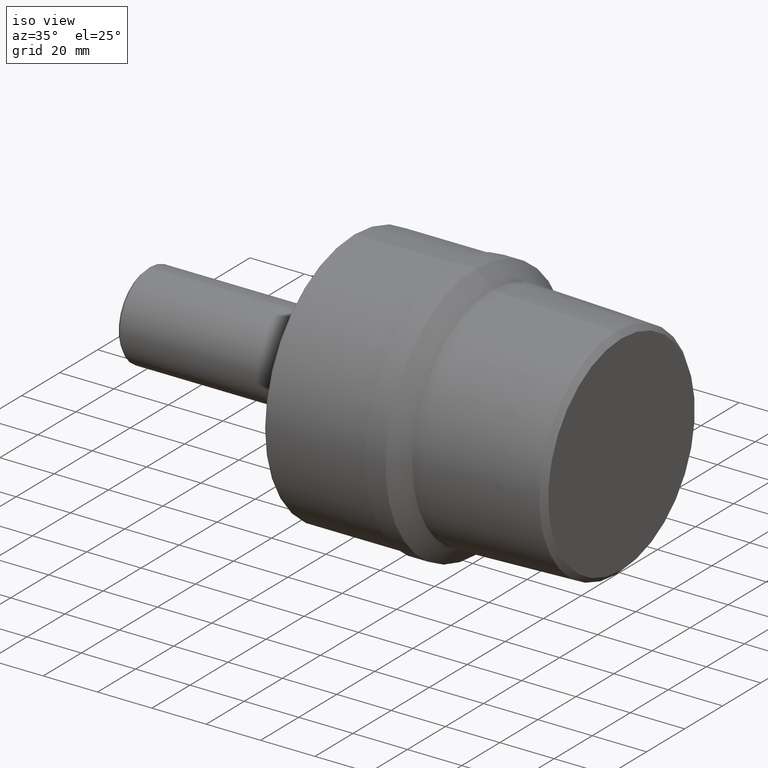
[diagram: clean part render]
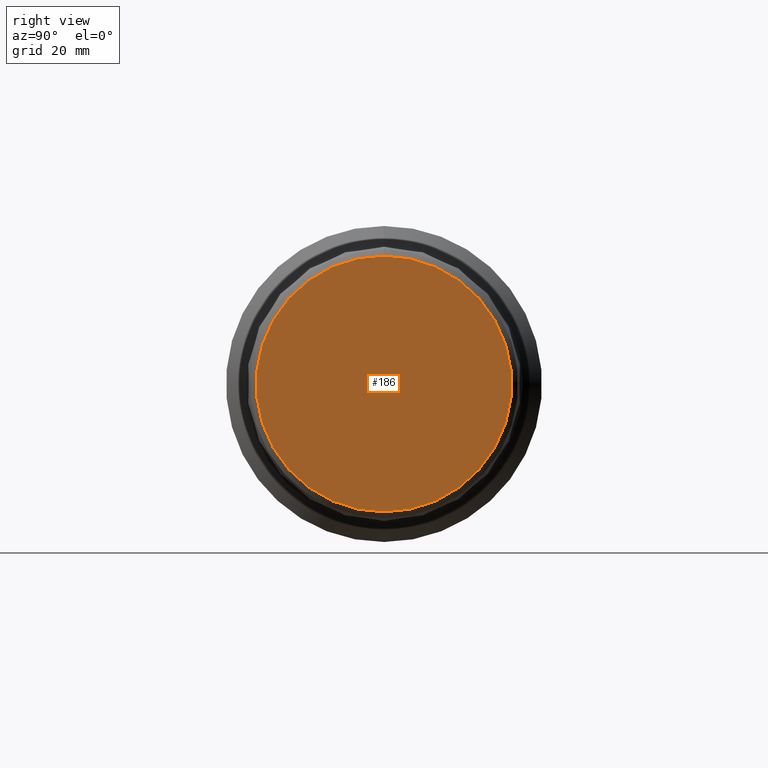
[diagram: tour spotlight — one face highlighted and labeled with its STEP entity id]
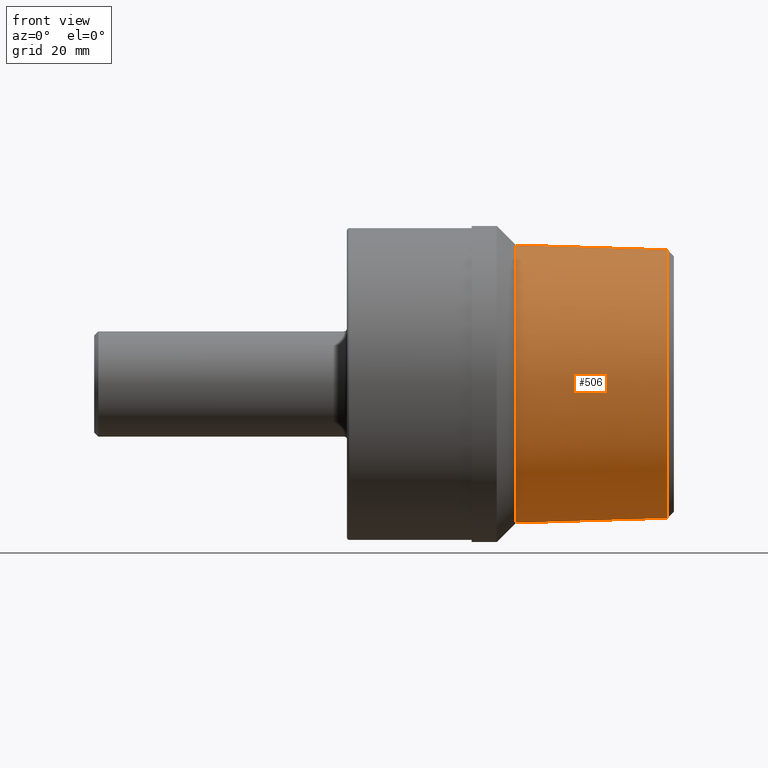
[diagram: tour spotlight — one face highlighted and labeled with its STEP entity id]
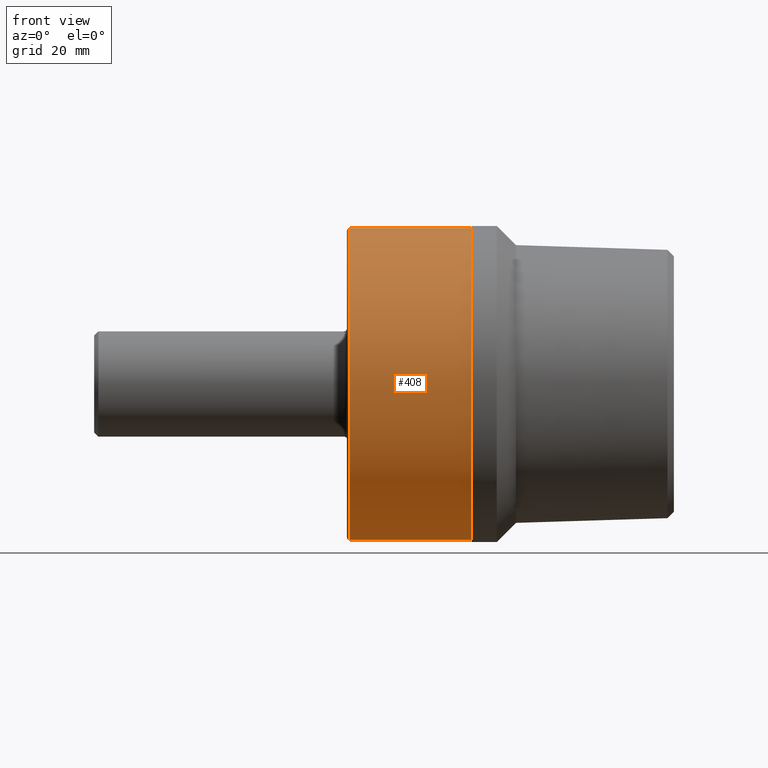
[diagram: tour spotlight — one face highlighted and labeled with its STEP entity id]
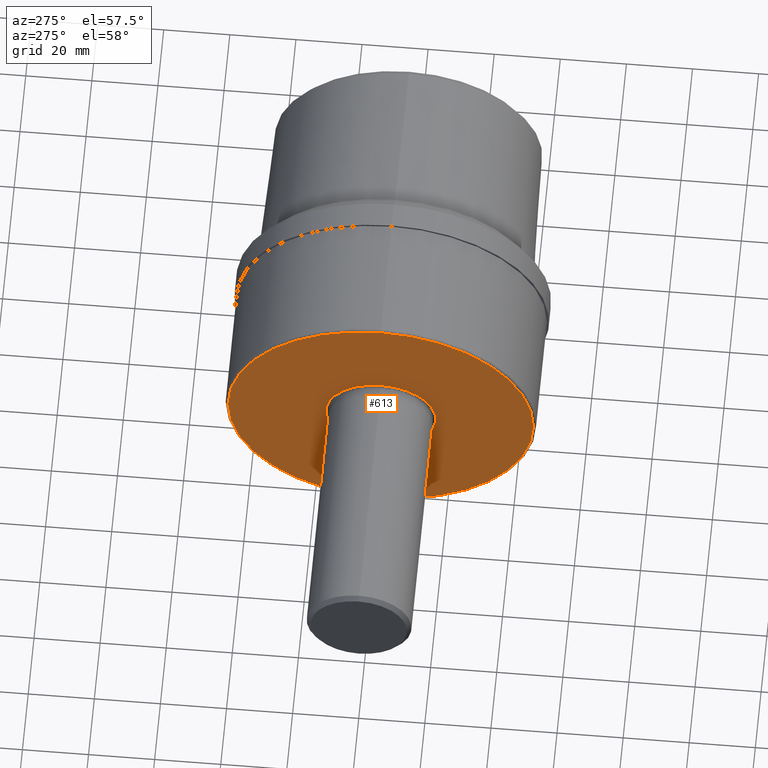
[diagram: tour spotlight — one face highlighted and labeled with its STEP entity id]
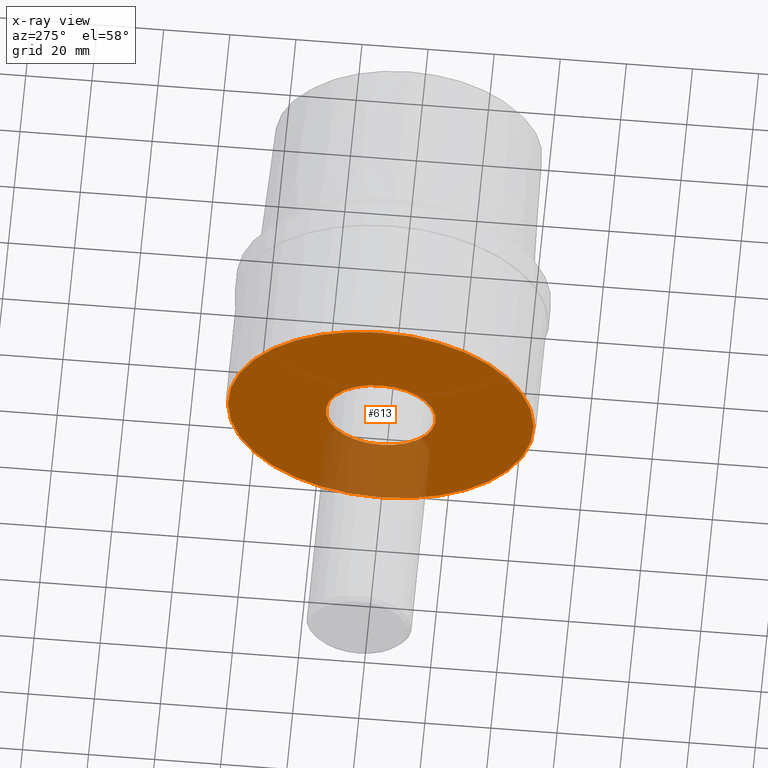
[diagram: x-ray of the same camera — body ghosted, this tour face saturated]
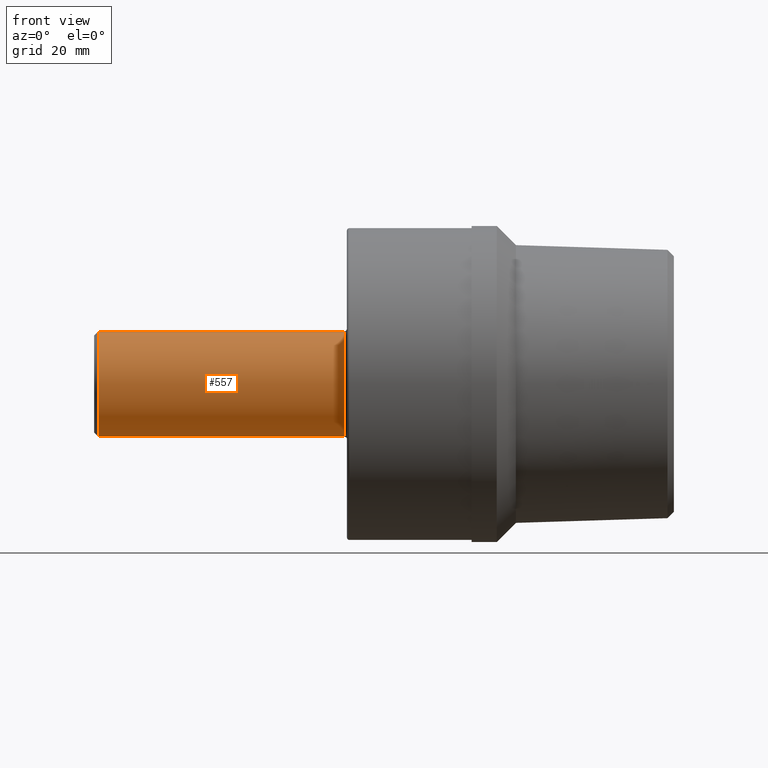
[diagram: tour spotlight — one face highlighted and labeled with its STEP entity id]
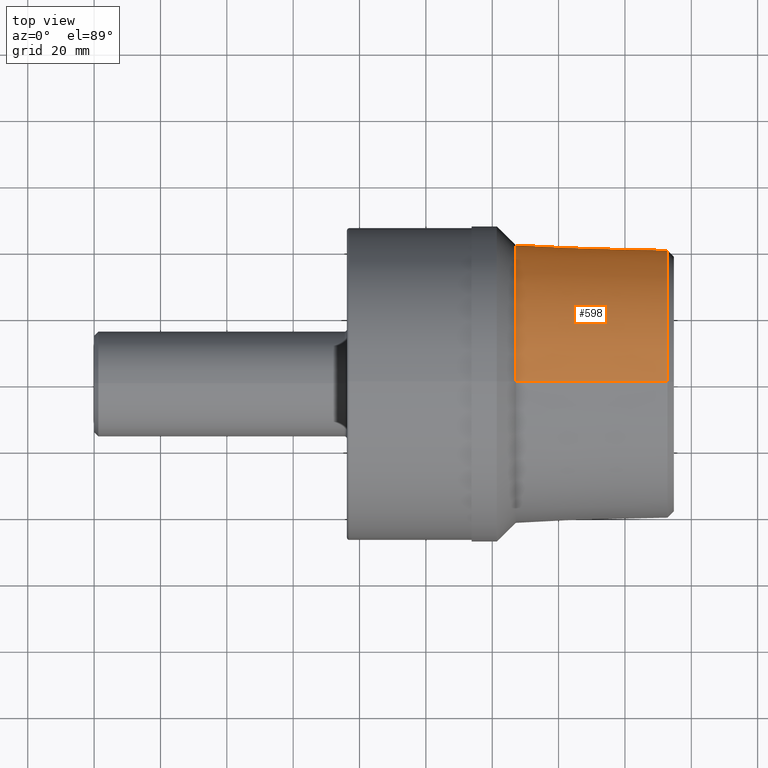
[diagram: tour spotlight — one face highlighted and labeled with its STEP entity id]
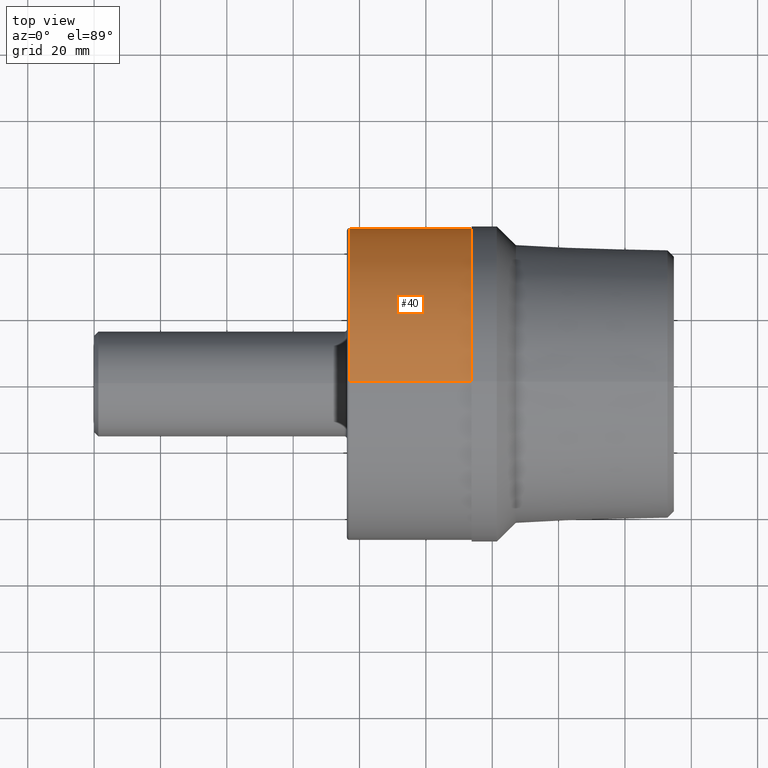
[diagram: tour spotlight — one face highlighted and labeled with its STEP entity id]
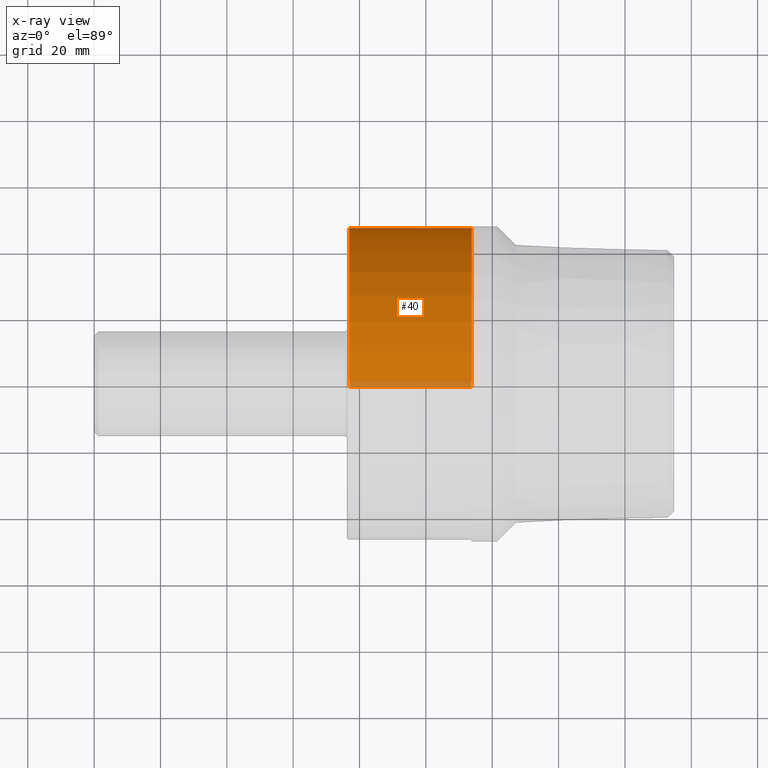
[diagram: x-ray of the same camera — body ghosted, this tour face saturated]
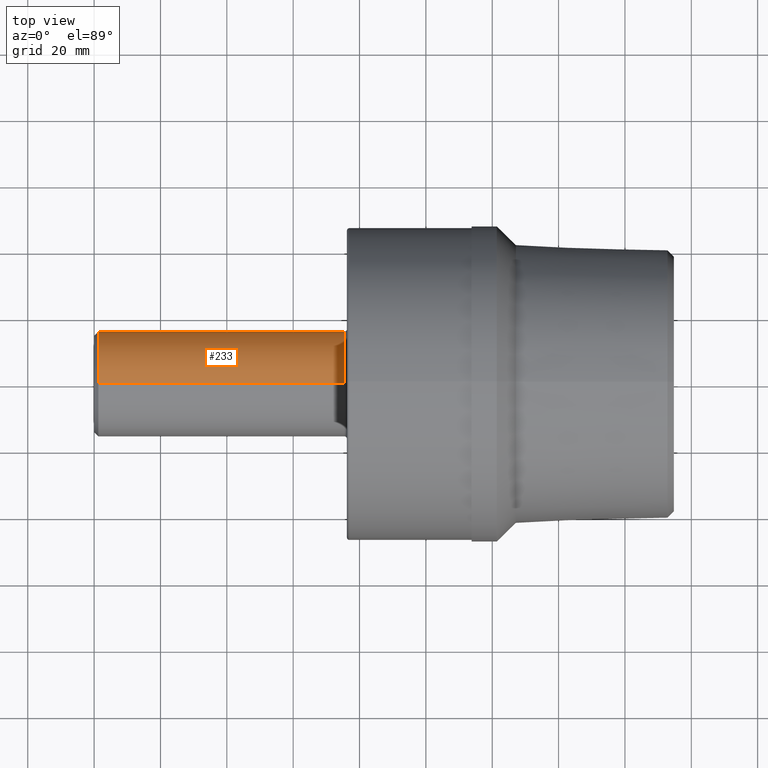
[diagram: tour spotlight — one face highlighted and labeled with its STEP entity id]
A machine part: a face-by-face anatomy tour. The part has 22 B-rep faces; the first image is the clean iso view, then the 8 largest visible faces are spotlighted one at a time (largest first), each with its STEP entity span.

Face 1 — right view, entity #186. In plain terms, the highlighted planar face has unit normal (-1, 0, -0).
Definition (entity closure, byte-faithful):
#34 = DIRECTION ( 'NONE',  ( 0.0000000000000000000, 0.0000000000000000000, 1.000000000000000000 ) ) ;
#43 = AXIS2_PLACEMENT_3D ( 'NONE', #351, #545, #221 ) ;
#46 = VERTEX_POINT ( 'NONE', #306 ) ;
#48 = AXIS2_PLACEMENT_3D ( 'NONE', #181, #261, #34 ) ;
#92 = CARTESIAN_POINT ( 'NONE',  ( 6.879999999999999893, 1.517061653312734126, 0.0000000000000000000 ) ) ;
#111 = EDGE_LOOP ( 'NONE', ( #309, #259 ) ) ;
#173 = VERTEX_POINT ( 'NONE', #295 ) ;
#175 = FACE_OUTER_BOUND ( 'NONE', #111, .T. ) ;
#176 = EDGE_CURVE ( 'NONE', #173, #46, #321, .T. ) ;
#181 = CARTESIAN_POINT ( 'NONE',  ( 6.879999999999999893, 0.0000000000000000000, 0.0000000000000000000 ) ) ;
#186 = ADVANCED_FACE ( 'NONE', ( #175 ), #446, .F. ) ;
#209 = DIRECTION ( 'NONE',  ( -0.0000000000000000000, 0.0000000000000000000, 1.000000000000000000 ) ) ;
#221 = DIRECTION ( 'NONE',  ( 0.0000000000000000000, 0.0000000000000000000, 1.000000000000000000 ) ) ;
#225 = EDGE_CURVE ( 'NONE', #46, #173, #381, .T. ) ;
#259 = ORIENTED_EDGE ( 'NONE', *, *, #225, .F. ) ;
#261 = DIRECTION ( 'NONE',  ( -1.000000000000000000, -0.0000000000000000000, -0.0000000000000000000 ) ) ;
#295 = CARTESIAN_POINT ( 'NONE',  ( 6.879999999999999893, 0.0000000000000000000, 1.517061653312734126 ) ) ;
#302 = DIRECTION ( 'NONE',  ( -1.000000000000000000, 0.0000000000000000000, -0.0000000000000000000 ) ) ;
#306 = CARTESIAN_POINT ( 'NONE',  ( 6.879999999999999893, 1.903788952806657656E-16, -1.517061653312734126 ) ) ;
#309 = ORIENTED_EDGE ( 'NONE', *, *, #176, .F. ) ;
#321 = CIRCLE ( 'NONE', #48, 1.517061653312734126 ) ;
#351 = CARTESIAN_POINT ( 'NONE',  ( 6.879999999999999893, 0.0000000000000000000, 0.0000000000000000000 ) ) ;
#381 = CIRCLE ( 'NONE', #43, 1.517061653312734126 ) ;
#446 = PLANE ( 'NONE',  #489 ) ;
#489 = AXIS2_PLACEMENT_3D ( 'NONE', #92, #302, #209 ) ;
#545 = DIRECTION ( 'NONE',  ( -1.000000000000000000, -0.0000000000000000000, -0.0000000000000000000 ) ) ;

Face 2 — front view, entity #506. In plain terms, the highlighted conical surface has half-angle 1.78 deg.
Definition (entity closure, byte-faithful):
#7 = CIRCLE ( 'NONE', #337, 1.647999999999999909 ) ;
#23 = DIRECTION ( 'NONE',  ( -1.000000000000000000, -0.0000000000000000000, -0.0000000000000000000 ) ) ;
#28 = VECTOR ( 'NONE', #516, 39.37007874015748854 ) ;
#36 = EDGE_CURVE ( 'NONE', #307, #177, #49, .T. ) ;
#49 = LINE ( 'NONE', #83, #28 ) ;
#55 = VECTOR ( 'NONE', #569, 39.37007874015748854 ) ;
#60 = AXIS2_PLACEMENT_3D ( 'NONE', #492, #114, #543 ) ;
#65 = CIRCLE ( 'NONE', #60, 1.592061653312734970 ) ;
#66 = EDGE_CURVE ( 'NONE', #177, #415, #7, .T. ) ;
#83 = CARTESIAN_POINT ( 'NONE',  ( 6.805000000000000604, 1.949713207774683978E-16, -1.592061653312734970 ) ) ;
#114 = DIRECTION ( 'NONE',  ( -1.000000000000000000, -0.0000000000000000000, -0.0000000000000000000 ) ) ;
#123 = CARTESIAN_POINT ( 'NONE',  ( 5.004999999999999893, 0.0000000000000000000, 0.0000000000000000000 ) ) ;
#149 = VERTEX_POINT ( 'NONE', #247 ) ;
#177 = VERTEX_POINT ( 'NONE', #311 ) ;
#190 = CARTESIAN_POINT ( 'NONE',  ( 6.805000000000000604, 0.0000000000000000000, 1.592061653312734970 ) ) ;
#245 = AXIS2_PLACEMENT_3D ( 'NONE', #548, #589, #338 ) ;
#247 = CARTESIAN_POINT ( 'NONE',  ( 6.805000000000000604, 0.0000000000000000000, 1.592061653312734970 ) ) ;
#280 = ORIENTED_EDGE ( 'NONE', *, *, #377, .T. ) ;
#307 = VERTEX_POINT ( 'NONE', #494 ) ;
#311 = CARTESIAN_POINT ( 'NONE',  ( 5.004999999999999893, 2.157215336698062520E-16, -1.647999999999999909 ) ) ;
#337 = AXIS2_PLACEMENT_3D ( 'NONE', #123, #23, #554 ) ;
#338 = DIRECTION ( 'NONE',  ( 0.0000000000000000000, 0.0000000000000000000, 1.000000000000000000 ) ) ;
#377 = EDGE_CURVE ( 'NONE', #307, #149, #65, .T. ) ;
#391 = CARTESIAN_POINT ( 'NONE',  ( 5.004999999999999893, 0.0000000000000000000, 1.647999999999999909 ) ) ;
#415 = VERTEX_POINT ( 'NONE', #391 ) ;
#418 = LINE ( 'NONE', #190, #55 ) ;
#420 = ORIENTED_EDGE ( 'NONE', *, *, #596, .T. ) ;
#448 = CONICAL_SURFACE ( 'NONE', #245, 1.592061653312734970, 0.03106686068549932567 ) ;
#479 = FACE_OUTER_BOUND ( 'NONE', #523, .T. ) ;
#492 = CARTESIAN_POINT ( 'NONE',  ( 6.805000000000000604, 0.0000000000000000000, 0.0000000000000000000 ) ) ;
#494 = CARTESIAN_POINT ( 'NONE',  ( 6.805000000000000604, 1.983965566384761139E-16, -1.592061653312734970 ) ) ;
#506 = ADVANCED_FACE ( 'NONE', ( #479 ), #448, .T. ) ;
#516 = DIRECTION ( 'NONE',  ( -0.9995174638954169577, 3.803981178931174618E-18, -0.03106186356408765711 ) ) ;
#523 = EDGE_LOOP ( 'NONE', ( #552, #280, #420, #592 ) ) ;
#543 = DIRECTION ( 'NONE',  ( 0.0000000000000000000, 0.0000000000000000000, 1.000000000000000000 ) ) ;
#548 = CARTESIAN_POINT ( 'NONE',  ( 6.805000000000000604, 0.0000000000000000000, 0.0000000000000000000 ) ) ;
#552 = ORIENTED_EDGE ( 'NONE', *, *, #36, .F. ) ;
#554 = DIRECTION ( 'NONE',  ( 0.0000000000000000000, 0.0000000000000000000, 1.000000000000000000 ) ) ;
#569 = DIRECTION ( 'NONE',  ( -0.9995174638954169577, 0.0000000000000000000, 0.03106186356408765711 ) ) ;
#589 = DIRECTION ( 'NONE',  ( -1.000000000000000000, -0.0000000000000000000, -0.0000000000000000000 ) ) ;
#592 = ORIENTED_EDGE ( 'NONE', *, *, #66, .F. ) ;
#596 = EDGE_CURVE ( 'NONE', #149, #415, #418, .T. ) ;

Face 3 — front view, entity #408. In plain terms, the highlighted cylindrical surface (partial cylindrical patch) has radius 46.99 mm, axis along (-1, -0, -0).
Definition (entity closure, byte-faithful):
#3 = ORIENTED_EDGE ( 'NONE', *, *, #405, .T. ) ;
#26 = CARTESIAN_POINT ( 'NONE',  ( 0.0000000000000000000, 0.0000000000000000000, 1.850000000000000311 ) ) ;
#54 = AXIS2_PLACEMENT_3D ( 'NONE', #257, #339, #291 ) ;
#116 = CIRCLE ( 'NONE', #54, 1.850000000000000311 ) ;
#117 = CARTESIAN_POINT ( 'NONE',  ( 4.479999999999999538, 0.0000000000000000000, 0.0000000000000000000 ) ) ;
#147 = VERTEX_POINT ( 'NONE', #293 ) ;
#157 = CIRCLE ( 'NONE', #358, 1.850000000000000311 ) ;
#170 = DIRECTION ( 'NONE',  ( -1.000000000000000000, -0.0000000000000000000, -0.0000000000000000000 ) ) ;
#171 = AXIS2_PLACEMENT_3D ( 'NONE', #583, #218, #551 ) ;
#194 = ORIENTED_EDGE ( 'NONE', *, *, #537, .F. ) ;
#200 = LINE ( 'NONE', #591, #541 ) ;
#211 = DIRECTION ( 'NONE',  ( 0.0000000000000000000, 0.0000000000000000000, 1.000000000000000000 ) ) ;
#215 = DIRECTION ( 'NONE',  ( -1.000000000000000000, -0.0000000000000000000, -0.0000000000000000000 ) ) ;
#218 = DIRECTION ( 'NONE',  ( -1.000000000000000000, -0.0000000000000000000, -0.0000000000000000000 ) ) ;
#226 = DIRECTION ( 'NONE',  ( -1.000000000000000000, -0.0000000000000000000, -0.0000000000000000000 ) ) ;
#237 = ORIENTED_EDGE ( 'NONE', *, *, #282, .F. ) ;
#257 = CARTESIAN_POINT ( 'NONE',  ( 3.030000000000000249, 0.0000000000000000000, 0.0000000000000000000 ) ) ;
#258 = FACE_OUTER_BOUND ( 'NONE', #582, .T. ) ;
#264 = CARTESIAN_POINT ( 'NONE',  ( 3.030000000000000249, 2.265596578422603594E-16, -1.850000000000000311 ) ) ;
#273 = CARTESIAN_POINT ( 'NONE',  ( 4.479999999999999538, 2.265596578422603594E-16, -1.850000000000000311 ) ) ;
#279 = VERTEX_POINT ( 'NONE', #608 ) ;
#282 = EDGE_CURVE ( 'NONE', #287, #527, #200, .T. ) ;
#287 = VERTEX_POINT ( 'NONE', #273 ) ;
#291 = DIRECTION ( 'NONE',  ( 0.0000000000000000000, 0.0000000000000000000, 1.000000000000000000 ) ) ;
#293 = CARTESIAN_POINT ( 'NONE',  ( 3.030000000000000249, 0.0000000000000000000, 1.850000000000000311 ) ) ;
#322 = EDGE_CURVE ( 'NONE', #279, #147, #356, .T. ) ;
#339 = DIRECTION ( 'NONE',  ( -1.000000000000000000, -0.0000000000000000000, -0.0000000000000000000 ) ) ;
#356 = LINE ( 'NONE', #26, #467 ) ;
#358 = AXIS2_PLACEMENT_3D ( 'NONE', #117, #170, #211 ) ;
#374 = CYLINDRICAL_SURFACE ( 'NONE', #171, 1.850000000000000311 ) ;
#405 = EDGE_CURVE ( 'NONE', #287, #279, #157, .T. ) ;
#408 = ADVANCED_FACE ( 'NONE', ( #258 ), #374, .T. ) ;
#419 = ORIENTED_EDGE ( 'NONE', *, *, #322, .T. ) ;
#467 = VECTOR ( 'NONE', #215, 39.37007874015748143 ) ;
#527 = VERTEX_POINT ( 'NONE', #264 ) ;
#537 = EDGE_CURVE ( 'NONE', #527, #147, #116, .T. ) ;
#541 = VECTOR ( 'NONE', #226, 39.37007874015748143 ) ;
#551 = DIRECTION ( 'NONE',  ( 0.0000000000000000000, 0.0000000000000000000, 1.000000000000000000 ) ) ;
#582 = EDGE_LOOP ( 'NONE', ( #237, #3, #419, #194 ) ) ;
#583 = CARTESIAN_POINT ( 'NONE',  ( 0.0000000000000000000, 0.0000000000000000000, 0.0000000000000000000 ) ) ;
#591 = CARTESIAN_POINT ( 'NONE',  ( 0.0000000000000000000, 2.265596578422603594E-16, -1.850000000000000311 ) ) ;
#608 = CARTESIAN_POINT ( 'NONE',  ( 4.479999999999999538, 0.0000000000000000000, 1.850000000000000311 ) ) ;

Face 4 — auxiliary view, entity #613. An x-ray twin of the same camera follows (body ghosted, this face saturated) — the face is partly hidden behind the body. In plain terms, the highlighted planar face has unit normal (1, 0, 0).
Definition (entity closure, byte-faithful):
#1 = CIRCLE ( 'NONE', #607, 1.820000000000000284 ) ;
#6 = AXIS2_PLACEMENT_3D ( 'NONE', #342, #203, #318 ) ;
#31 = CARTESIAN_POINT ( 'NONE',  ( 3.000000000000000444, 0.0000000000000000000, 1.820000000000000284 ) ) ;
#39 = VERTEX_POINT ( 'NONE', #414 ) ;
#57 = ORIENTED_EDGE ( 'NONE', *, *, #577, .T. ) ;
#72 = PLANE ( 'NONE',  #514 ) ;
#109 = EDGE_LOOP ( 'NONE', ( #184, #57 ) ) ;
#164 = FACE_OUTER_BOUND ( 'NONE', #109, .T. ) ;
#179 = CARTESIAN_POINT ( 'NONE',  ( 2.999999999999999556, 1.820000000000000284, 0.0000000000000000000 ) ) ;
#184 = ORIENTED_EDGE ( 'NONE', *, *, #447, .T. ) ;
#188 = AXIS2_PLACEMENT_3D ( 'NONE', #502, #270, #402 ) ;
#195 = VERTEX_POINT ( 'NONE', #31 ) ;
#196 = CIRCLE ( 'NONE', #347, 0.6548500000000007093 ) ;
#203 = DIRECTION ( 'NONE',  ( -1.000000000000000000, -0.0000000000000000000, -0.0000000000000000000 ) ) ;
#254 = DIRECTION ( 'NONE',  ( 1.000000000000000000, 0.0000000000000000000, 0.0000000000000000000 ) ) ;
#267 = CARTESIAN_POINT ( 'NONE',  ( 3.000000000000000444, 0.0000000000000000000, 0.0000000000000000000 ) ) ;
#270 = DIRECTION ( 'NONE',  ( -1.000000000000000000, -0.0000000000000000000, -0.0000000000000000000 ) ) ;
#274 = DIRECTION ( 'NONE',  ( 0.0000000000000000000, 0.0000000000000000000, -1.000000000000000000 ) ) ;
#318 = DIRECTION ( 'NONE',  ( 0.0000000000000000000, 0.0000000000000000000, 1.000000000000000000 ) ) ;
#325 = DIRECTION ( 'NONE',  ( 0.0000000000000000000, 0.0000000000000000000, 1.000000000000000000 ) ) ;
#333 = CIRCLE ( 'NONE', #6, 0.6548500000000007093 ) ;
#342 = CARTESIAN_POINT ( 'NONE',  ( 2.999999999999999556, 0.0000000000000000000, 0.0000000000000000000 ) ) ;
#347 = AXIS2_PLACEMENT_3D ( 'NONE', #511, #413, #532 ) ;
#386 = CARTESIAN_POINT ( 'NONE',  ( 2.999999999999999556, 0.0000000000000000000, 0.6548500000000007093 ) ) ;
#387 = FACE_BOUND ( 'NONE', #392, .T. ) ;
#392 = EDGE_LOOP ( 'NONE', ( #538, #519 ) ) ;
#393 = CARTESIAN_POINT ( 'NONE',  ( 3.000000000000000444, 2.247226876435393459E-16, -1.820000000000000284 ) ) ;
#402 = DIRECTION ( 'NONE',  ( 0.0000000000000000000, 0.0000000000000000000, 1.000000000000000000 ) ) ;
#413 = DIRECTION ( 'NONE',  ( -1.000000000000000000, -0.0000000000000000000, -0.0000000000000000000 ) ) ;
#414 = CARTESIAN_POINT ( 'NONE',  ( 2.999999999999999556, 8.019599564216449926E-17, -0.6548500000000007093 ) ) ;
#447 = EDGE_CURVE ( 'NONE', #195, #535, #1, .T. ) ;
#502 = CARTESIAN_POINT ( 'NONE',  ( 3.000000000000000444, 0.0000000000000000000, 0.0000000000000000000 ) ) ;
#511 = CARTESIAN_POINT ( 'NONE',  ( 2.999999999999999556, 0.0000000000000000000, 0.0000000000000000000 ) ) ;
#514 = AXIS2_PLACEMENT_3D ( 'NONE', #179, #254, #274 ) ;
#518 = EDGE_CURVE ( 'NONE', #571, #39, #333, .T. ) ;
#519 = ORIENTED_EDGE ( 'NONE', *, *, #593, .F. ) ;
#530 = DIRECTION ( 'NONE',  ( -1.000000000000000000, -0.0000000000000000000, -0.0000000000000000000 ) ) ;
#532 = DIRECTION ( 'NONE',  ( 0.0000000000000000000, 0.0000000000000000000, 1.000000000000000000 ) ) ;
#535 = VERTEX_POINT ( 'NONE', #393 ) ;
#538 = ORIENTED_EDGE ( 'NONE', *, *, #518, .F. ) ;
#559 = CIRCLE ( 'NONE', #188, 1.820000000000000284 ) ;
#571 = VERTEX_POINT ( 'NONE', #386 ) ;
#577 = EDGE_CURVE ( 'NONE', #535, #195, #559, .T. ) ;
#593 = EDGE_CURVE ( 'NONE', #39, #571, #196, .T. ) ;
#607 = AXIS2_PLACEMENT_3D ( 'NONE', #267, #530, #325 ) ;
#613 = ADVANCED_FACE ( 'NONE', ( #387, #164 ), #72, .F. ) ;

Face 5 — front view, entity #557. In plain terms, the highlighted cylindrical surface (partial cylindrical patch) has radius 15.8712 mm, axis along (-1, -0, -0).
Definition (entity closure, byte-faithful):
#22 = DIRECTION ( 'NONE',  ( 0.0000000000000000000, 0.0000000000000000000, 1.000000000000000000 ) ) ;
#53 = EDGE_CURVE ( 'NONE', #317, #434, #429, .T. ) ;
#62 = CARTESIAN_POINT ( 'NONE',  ( 2.970000000000000195, 0.0000000000000000000, 0.6248500000000007937 ) ) ;
#68 = CYLINDRICAL_SURFACE ( 'NONE', #82, 0.6248500000000004606 ) ;
#82 = AXIS2_PLACEMENT_3D ( 'NONE', #212, #134, #368 ) ;
#100 = EDGE_LOOP ( 'NONE', ( #174, #191, #462, #528 ) ) ;
#103 = CIRCLE ( 'NONE', #526, 0.6248500000000007937 ) ;
#121 = EDGE_CURVE ( 'NONE', #357, #371, #310, .T. ) ;
#134 = DIRECTION ( 'NONE',  ( -1.000000000000000000, -0.0000000000000000000, -0.0000000000000000000 ) ) ;
#144 = DIRECTION ( 'NONE',  ( -1.000000000000000000, -0.0000000000000000000, -0.0000000000000000000 ) ) ;
#174 = ORIENTED_EDGE ( 'NONE', *, *, #53, .F. ) ;
#183 = CARTESIAN_POINT ( 'NONE',  ( 0.0000000000000000000, 7.652205524472241080E-17, -0.6248500000000004606 ) ) ;
#187 = DIRECTION ( 'NONE',  ( -1.000000000000000000, -0.0000000000000000000, -0.0000000000000000000 ) ) ;
#191 = ORIENTED_EDGE ( 'NONE', *, *, #521, .T. ) ;
#212 = CARTESIAN_POINT ( 'NONE',  ( 0.0000000000000000000, 0.0000000000000000000, 0.0000000000000000000 ) ) ;
#213 = AXIS2_PLACEMENT_3D ( 'NONE', #332, #345, #22 ) ;
#239 = CARTESIAN_POINT ( 'NONE',  ( 2.970000000000000195, 7.652205524472246010E-17, -0.6248500000000007937 ) ) ;
#246 = CARTESIAN_POINT ( 'NONE',  ( 0.05000000000000000278, 7.652205524472237382E-17, 0.6248500000000000165 ) ) ;
#300 = VECTOR ( 'NONE', #412, 39.37007874015748143 ) ;
#308 = FACE_OUTER_BOUND ( 'NONE', #100, .T. ) ;
#310 = LINE ( 'NONE', #340, #540 ) ;
#317 = VERTEX_POINT ( 'NONE', #239 ) ;
#332 = CARTESIAN_POINT ( 'NONE',  ( 0.05000000000000000278, 0.0000000000000000000, 0.0000000000000000000 ) ) ;
#340 = CARTESIAN_POINT ( 'NONE',  ( 0.0000000000000000000, 0.0000000000000000000, 0.6248500000000004606 ) ) ;
#345 = DIRECTION ( 'NONE',  ( -1.000000000000000000, -0.0000000000000000000, -0.0000000000000000000 ) ) ;
#357 = VERTEX_POINT ( 'NONE', #62 ) ;
#368 = DIRECTION ( 'NONE',  ( 0.0000000000000000000, 0.0000000000000000000, 1.000000000000000000 ) ) ;
#371 = VERTEX_POINT ( 'NONE', #246 ) ;
#397 = CARTESIAN_POINT ( 'NONE',  ( 2.970000000000000195, 0.0000000000000000000, 0.0000000000000000000 ) ) ;
#409 = EDGE_CURVE ( 'NONE', #434, #371, #495, .T. ) ;
#412 = DIRECTION ( 'NONE',  ( -1.000000000000000000, -0.0000000000000000000, -0.0000000000000000000 ) ) ;
#429 = LINE ( 'NONE', #183, #300 ) ;
#434 = VERTEX_POINT ( 'NONE', #578 ) ;
#462 = ORIENTED_EDGE ( 'NONE', *, *, #121, .T. ) ;
#495 = CIRCLE ( 'NONE', #213, 0.6248500000000000165 ) ;
#497 = DIRECTION ( 'NONE',  ( 0.0000000000000000000, 0.0000000000000000000, 1.000000000000000000 ) ) ;
#521 = EDGE_CURVE ( 'NONE', #317, #357, #103, .T. ) ;
#526 = AXIS2_PLACEMENT_3D ( 'NONE', #397, #187, #497 ) ;
#528 = ORIENTED_EDGE ( 'NONE', *, *, #409, .F. ) ;
#540 = VECTOR ( 'NONE', #144, 39.37007874015748143 ) ;
#557 = ADVANCED_FACE ( 'NONE', ( #308 ), #68, .T. ) ;
#578 = CARTESIAN_POINT ( 'NONE',  ( 0.05000000000000000278, 0.0000000000000000000, -0.6248500000000000165 ) ) ;

Face 6 — top view, entity #598. In plain terms, the highlighted conical surface has half-angle 1.78 deg.
Definition (entity closure, byte-faithful):
#16 = EDGE_CURVE ( 'NONE', #415, #177, #154, .T. ) ;
#28 = VECTOR ( 'NONE', #516, 39.37007874015748854 ) ;
#30 = ORIENTED_EDGE ( 'NONE', *, *, #323, .T. ) ;
#36 = EDGE_CURVE ( 'NONE', #307, #177, #49, .T. ) ;
#49 = LINE ( 'NONE', #83, #28 ) ;
#55 = VECTOR ( 'NONE', #569, 39.37007874015748854 ) ;
#78 = DIRECTION ( 'NONE',  ( -1.000000000000000000, -0.0000000000000000000, -0.0000000000000000000 ) ) ;
#83 = CARTESIAN_POINT ( 'NONE',  ( 6.805000000000000604, 1.949713207774683978E-16, -1.592061653312734970 ) ) ;
#84 = CARTESIAN_POINT ( 'NONE',  ( 6.805000000000000604, 0.0000000000000000000, 0.0000000000000000000 ) ) ;
#91 = AXIS2_PLACEMENT_3D ( 'NONE', #228, #457, #505 ) ;
#106 = CIRCLE ( 'NONE', #207, 1.592061653312734970 ) ;
#149 = VERTEX_POINT ( 'NONE', #247 ) ;
#154 = CIRCLE ( 'NONE', #605, 1.647999999999999909 ) ;
#177 = VERTEX_POINT ( 'NONE', #311 ) ;
#190 = CARTESIAN_POINT ( 'NONE',  ( 6.805000000000000604, 0.0000000000000000000, 1.592061653312734970 ) ) ;
#207 = AXIS2_PLACEMENT_3D ( 'NONE', #84, #78, #352 ) ;
#228 = CARTESIAN_POINT ( 'NONE',  ( 6.805000000000000604, 0.0000000000000000000, 0.0000000000000000000 ) ) ;
#232 = DIRECTION ( 'NONE',  ( 0.0000000000000000000, 0.0000000000000000000, 1.000000000000000000 ) ) ;
#247 = CARTESIAN_POINT ( 'NONE',  ( 6.805000000000000604, 0.0000000000000000000, 1.592061653312734970 ) ) ;
#307 = VERTEX_POINT ( 'NONE', #494 ) ;
#311 = CARTESIAN_POINT ( 'NONE',  ( 5.004999999999999893, 2.157215336698062520E-16, -1.647999999999999909 ) ) ;
#323 = EDGE_CURVE ( 'NONE', #149, #307, #106, .T. ) ;
#352 = DIRECTION ( 'NONE',  ( 0.0000000000000000000, 0.0000000000000000000, 1.000000000000000000 ) ) ;
#391 = CARTESIAN_POINT ( 'NONE',  ( 5.004999999999999893, 0.0000000000000000000, 1.647999999999999909 ) ) ;
#406 = FACE_OUTER_BOUND ( 'NONE', #427, .T. ) ;
#415 = VERTEX_POINT ( 'NONE', #391 ) ;
#418 = LINE ( 'NONE', #190, #55 ) ;
#427 = EDGE_LOOP ( 'NONE', ( #30, #574, #588, #439 ) ) ;
#436 = DIRECTION ( 'NONE',  ( -1.000000000000000000, -0.0000000000000000000, -0.0000000000000000000 ) ) ;
#439 = ORIENTED_EDGE ( 'NONE', *, *, #596, .F. ) ;
#457 = DIRECTION ( 'NONE',  ( -1.000000000000000000, -0.0000000000000000000, -0.0000000000000000000 ) ) ;
#491 = CARTESIAN_POINT ( 'NONE',  ( 5.004999999999999893, 0.0000000000000000000, 0.0000000000000000000 ) ) ;
#494 = CARTESIAN_POINT ( 'NONE',  ( 6.805000000000000604, 1.983965566384761139E-16, -1.592061653312734970 ) ) ;
#505 = DIRECTION ( 'NONE',  ( 0.0000000000000000000, 0.0000000000000000000, 1.000000000000000000 ) ) ;
#516 = DIRECTION ( 'NONE',  ( -0.9995174638954169577, 3.803981178931174618E-18, -0.03106186356408765711 ) ) ;
#522 = CONICAL_SURFACE ( 'NONE', #91, 1.592061653312734970, 0.03106686068549932567 ) ;
#569 = DIRECTION ( 'NONE',  ( -0.9995174638954169577, 0.0000000000000000000, 0.03106186356408765711 ) ) ;
#574 = ORIENTED_EDGE ( 'NONE', *, *, #36, .T. ) ;
#588 = ORIENTED_EDGE ( 'NONE', *, *, #16, .F. ) ;
#596 = EDGE_CURVE ( 'NONE', #149, #415, #418, .T. ) ;
#598 = ADVANCED_FACE ( 'NONE', ( #406 ), #522, .T. ) ;
#605 = AXIS2_PLACEMENT_3D ( 'NONE', #491, #436, #232 ) ;

Face 7 — top view, entity #40. An x-ray twin of the same camera follows (body ghosted, this face saturated) — the face is partly hidden behind the body. In plain terms, the highlighted cylindrical surface (partial cylindrical patch) has radius 46.99 mm, axis along (-1, -0, -0).
Definition (entity closure, byte-faithful):
#26 = CARTESIAN_POINT ( 'NONE',  ( 0.0000000000000000000, 0.0000000000000000000, 1.850000000000000311 ) ) ;
#29 = DIRECTION ( 'NONE',  ( 0.0000000000000000000, 0.0000000000000000000, 1.000000000000000000 ) ) ;
#40 = ADVANCED_FACE ( 'NONE', ( #529 ), #517, .T. ) ;
#64 = DIRECTION ( 'NONE',  ( 0.0000000000000000000, 0.0000000000000000000, 1.000000000000000000 ) ) ;
#95 = AXIS2_PLACEMENT_3D ( 'NONE', #120, #155, #64 ) ;
#120 = CARTESIAN_POINT ( 'NONE',  ( 4.479999999999999538, 0.0000000000000000000, 0.0000000000000000000 ) ) ;
#147 = VERTEX_POINT ( 'NONE', #293 ) ;
#152 = AXIS2_PLACEMENT_3D ( 'NONE', #214, #435, #29 ) ;
#155 = DIRECTION ( 'NONE',  ( -1.000000000000000000, -0.0000000000000000000, -0.0000000000000000000 ) ) ;
#172 = ORIENTED_EDGE ( 'NONE', *, *, #344, .T. ) ;
#197 = ORIENTED_EDGE ( 'NONE', *, *, #322, .F. ) ;
#200 = LINE ( 'NONE', #591, #541 ) ;
#214 = CARTESIAN_POINT ( 'NONE',  ( 0.0000000000000000000, 0.0000000000000000000, 0.0000000000000000000 ) ) ;
#215 = DIRECTION ( 'NONE',  ( -1.000000000000000000, -0.0000000000000000000, -0.0000000000000000000 ) ) ;
#226 = DIRECTION ( 'NONE',  ( -1.000000000000000000, -0.0000000000000000000, -0.0000000000000000000 ) ) ;
#236 = CIRCLE ( 'NONE', #376, 1.850000000000000311 ) ;
#262 = CIRCLE ( 'NONE', #95, 1.850000000000000311 ) ;
#264 = CARTESIAN_POINT ( 'NONE',  ( 3.030000000000000249, 2.265596578422603594E-16, -1.850000000000000311 ) ) ;
#273 = CARTESIAN_POINT ( 'NONE',  ( 4.479999999999999538, 2.265596578422603594E-16, -1.850000000000000311 ) ) ;
#279 = VERTEX_POINT ( 'NONE', #608 ) ;
#282 = EDGE_CURVE ( 'NONE', #287, #527, #200, .T. ) ;
#287 = VERTEX_POINT ( 'NONE', #273 ) ;
#293 = CARTESIAN_POINT ( 'NONE',  ( 3.030000000000000249, 0.0000000000000000000, 1.850000000000000311 ) ) ;
#322 = EDGE_CURVE ( 'NONE', #279, #147, #356, .T. ) ;
#331 = EDGE_LOOP ( 'NONE', ( #172, #398, #609, #197 ) ) ;
#344 = EDGE_CURVE ( 'NONE', #279, #287, #262, .T. ) ;
#356 = LINE ( 'NONE', #26, #467 ) ;
#376 = AXIS2_PLACEMENT_3D ( 'NONE', #400, #501, #451 ) ;
#398 = ORIENTED_EDGE ( 'NONE', *, *, #282, .T. ) ;
#400 = CARTESIAN_POINT ( 'NONE',  ( 3.030000000000000249, 0.0000000000000000000, 0.0000000000000000000 ) ) ;
#435 = DIRECTION ( 'NONE',  ( -1.000000000000000000, -0.0000000000000000000, -0.0000000000000000000 ) ) ;
#451 = DIRECTION ( 'NONE',  ( 0.0000000000000000000, 0.0000000000000000000, 1.000000000000000000 ) ) ;
#467 = VECTOR ( 'NONE', #215, 39.37007874015748143 ) ;
#472 = EDGE_CURVE ( 'NONE', #147, #527, #236, .T. ) ;
#501 = DIRECTION ( 'NONE',  ( -1.000000000000000000, -0.0000000000000000000, -0.0000000000000000000 ) ) ;
#517 = CYLINDRICAL_SURFACE ( 'NONE', #152, 1.850000000000000311 ) ;
#527 = VERTEX_POINT ( 'NONE', #264 ) ;
#529 = FACE_OUTER_BOUND ( 'NONE', #331, .T. ) ;
#541 = VECTOR ( 'NONE', #226, 39.37007874015748143 ) ;
#591 = CARTESIAN_POINT ( 'NONE',  ( 0.0000000000000000000, 2.265596578422603594E-16, -1.850000000000000311 ) ) ;
#608 = CARTESIAN_POINT ( 'NONE',  ( 4.479999999999999538, 0.0000000000000000000, 1.850000000000000311 ) ) ;
#609 = ORIENTED_EDGE ( 'NONE', *, *, #472, .F. ) ;

Face 8 — top view, entity #233. In plain terms, the highlighted cylindrical surface (partial cylindrical patch) has radius 15.8712 mm, axis along (-1, -0, -0).
Definition (entity closure, byte-faithful):
#17 = CARTESIAN_POINT ( 'NONE',  ( 0.05000000000000000278, 0.0000000000000000000, 0.0000000000000000000 ) ) ;
#27 = EDGE_LOOP ( 'NONE', ( #162, #241, #426, #131 ) ) ;
#53 = EDGE_CURVE ( 'NONE', #317, #434, #429, .T. ) ;
#62 = CARTESIAN_POINT ( 'NONE',  ( 2.970000000000000195, 0.0000000000000000000, 0.6248500000000007937 ) ) ;
#102 = AXIS2_PLACEMENT_3D ( 'NONE', #17, #328, #113 ) ;
#113 = DIRECTION ( 'NONE',  ( 0.0000000000000000000, 0.0000000000000000000, 1.000000000000000000 ) ) ;
#121 = EDGE_CURVE ( 'NONE', #357, #371, #310, .T. ) ;
#128 = CIRCLE ( 'NONE', #102, 0.6248500000000000165 ) ;
#131 = ORIENTED_EDGE ( 'NONE', *, *, #121, .F. ) ;
#139 = DIRECTION ( 'NONE',  ( 0.0000000000000000000, 0.0000000000000000000, 1.000000000000000000 ) ) ;
#144 = DIRECTION ( 'NONE',  ( -1.000000000000000000, -0.0000000000000000000, -0.0000000000000000000 ) ) ;
#148 = CIRCLE ( 'NONE', #199, 0.6248500000000007937 ) ;
#162 = ORIENTED_EDGE ( 'NONE', *, *, #459, .T. ) ;
#183 = CARTESIAN_POINT ( 'NONE',  ( 0.0000000000000000000, 7.652205524472241080E-17, -0.6248500000000004606 ) ) ;
#193 = CYLINDRICAL_SURFACE ( 'NONE', #546, 0.6248500000000004606 ) ;
#199 = AXIS2_PLACEMENT_3D ( 'NONE', #481, #555, #290 ) ;
#233 = ADVANCED_FACE ( 'NONE', ( #503 ), #193, .T. ) ;
#239 = CARTESIAN_POINT ( 'NONE',  ( 2.970000000000000195, 7.652205524472246010E-17, -0.6248500000000007937 ) ) ;
#241 = ORIENTED_EDGE ( 'NONE', *, *, #53, .T. ) ;
#246 = CARTESIAN_POINT ( 'NONE',  ( 0.05000000000000000278, 7.652205524472237382E-17, 0.6248500000000000165 ) ) ;
#290 = DIRECTION ( 'NONE',  ( 0.0000000000000000000, 0.0000000000000000000, 1.000000000000000000 ) ) ;
#300 = VECTOR ( 'NONE', #412, 39.37007874015748143 ) ;
#310 = LINE ( 'NONE', #340, #540 ) ;
#317 = VERTEX_POINT ( 'NONE', #239 ) ;
#328 = DIRECTION ( 'NONE',  ( -1.000000000000000000, -0.0000000000000000000, -0.0000000000000000000 ) ) ;
#340 = CARTESIAN_POINT ( 'NONE',  ( 0.0000000000000000000, 0.0000000000000000000, 0.6248500000000004606 ) ) ;
#357 = VERTEX_POINT ( 'NONE', #62 ) ;
#360 = EDGE_CURVE ( 'NONE', #371, #434, #128, .T. ) ;
#371 = VERTEX_POINT ( 'NONE', #246 ) ;
#412 = DIRECTION ( 'NONE',  ( -1.000000000000000000, -0.0000000000000000000, -0.0000000000000000000 ) ) ;
#426 = ORIENTED_EDGE ( 'NONE', *, *, #360, .F. ) ;
#429 = LINE ( 'NONE', #183, #300 ) ;
#434 = VERTEX_POINT ( 'NONE', #578 ) ;
#452 = CARTESIAN_POINT ( 'NONE',  ( 0.0000000000000000000, 0.0000000000000000000, 0.0000000000000000000 ) ) ;
#459 = EDGE_CURVE ( 'NONE', #357, #317, #148, .T. ) ;
#481 = CARTESIAN_POINT ( 'NONE',  ( 2.970000000000000195, 0.0000000000000000000, 0.0000000000000000000 ) ) ;
#503 = FACE_OUTER_BOUND ( 'NONE', #27, .T. ) ;
#504 = DIRECTION ( 'NONE',  ( -1.000000000000000000, -0.0000000000000000000, -0.0000000000000000000 ) ) ;
#540 = VECTOR ( 'NONE', #144, 39.37007874015748143 ) ;
#546 = AXIS2_PLACEMENT_3D ( 'NONE', #452, #504, #139 ) ;
#555 = DIRECTION ( 'NONE',  ( -1.000000000000000000, -0.0000000000000000000, -0.0000000000000000000 ) ) ;
#578 = CARTESIAN_POINT ( 'NONE',  ( 0.05000000000000000278, 0.0000000000000000000, -0.6248500000000000165 ) ) ;